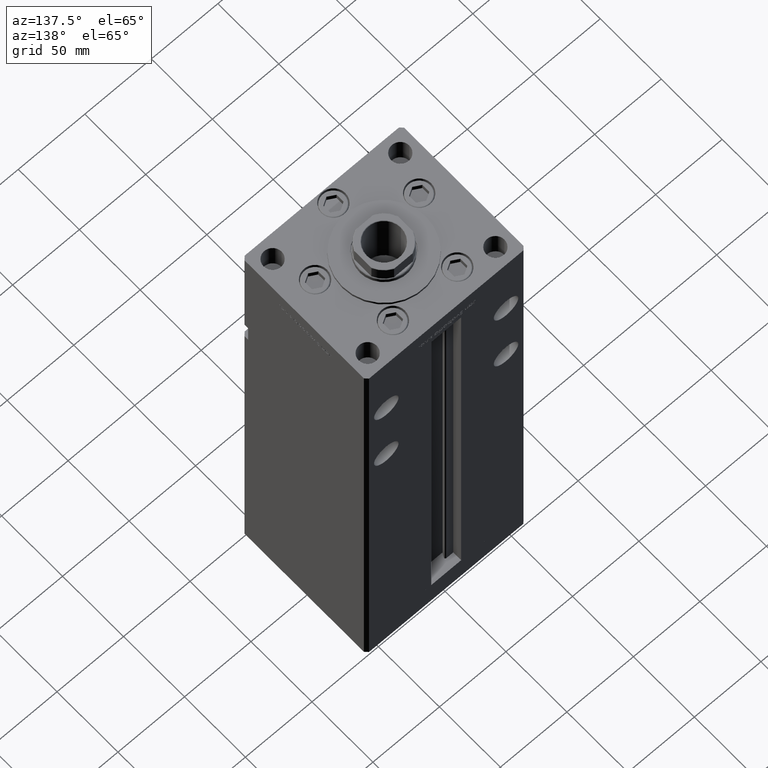
[diagram: clean part render]
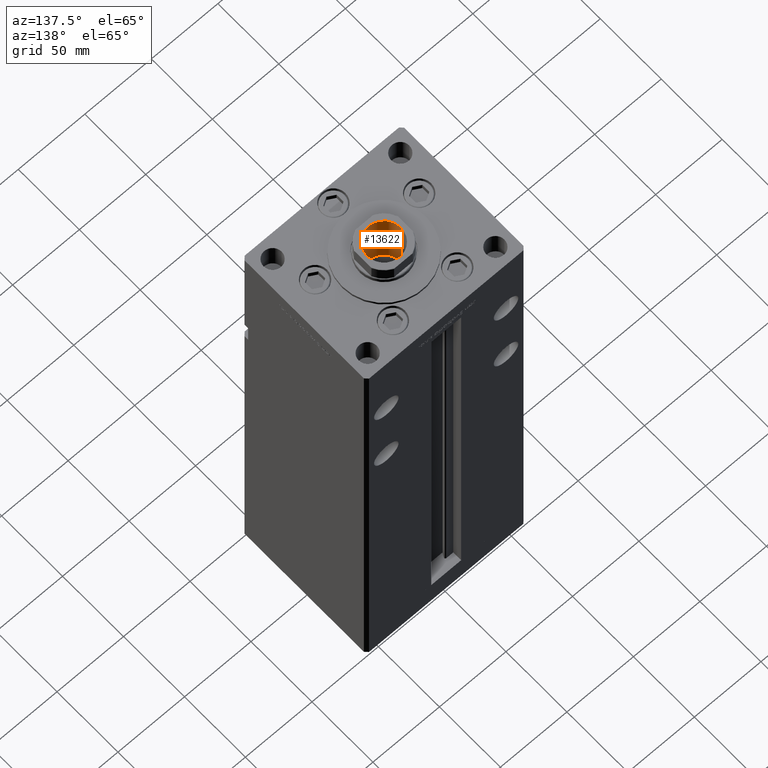
[diagram: same view with one face highlighted and labeled with its STEP entity id]
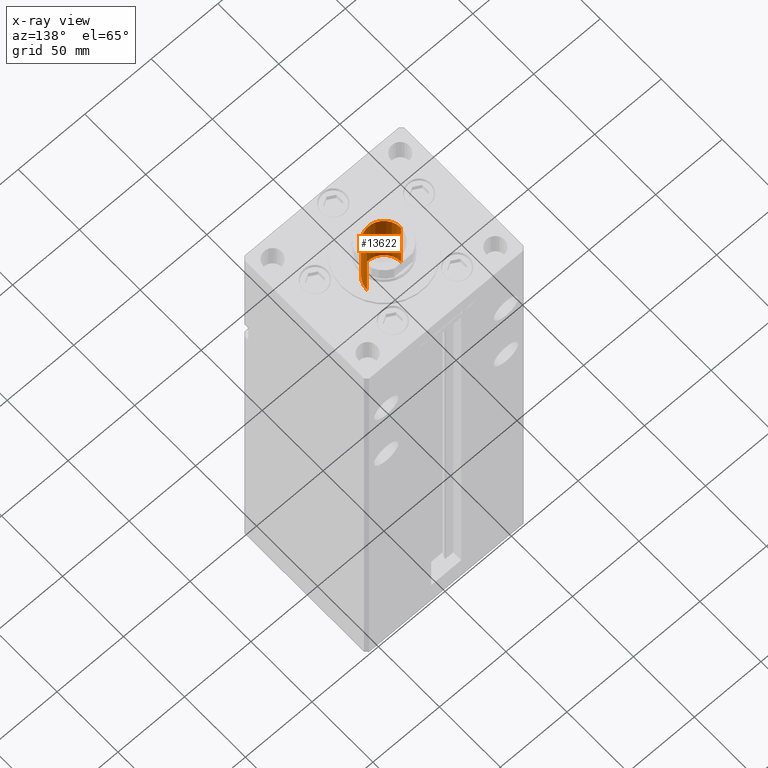
[diagram: x-ray of the same camera — body ghosted, the highlighted face saturated]
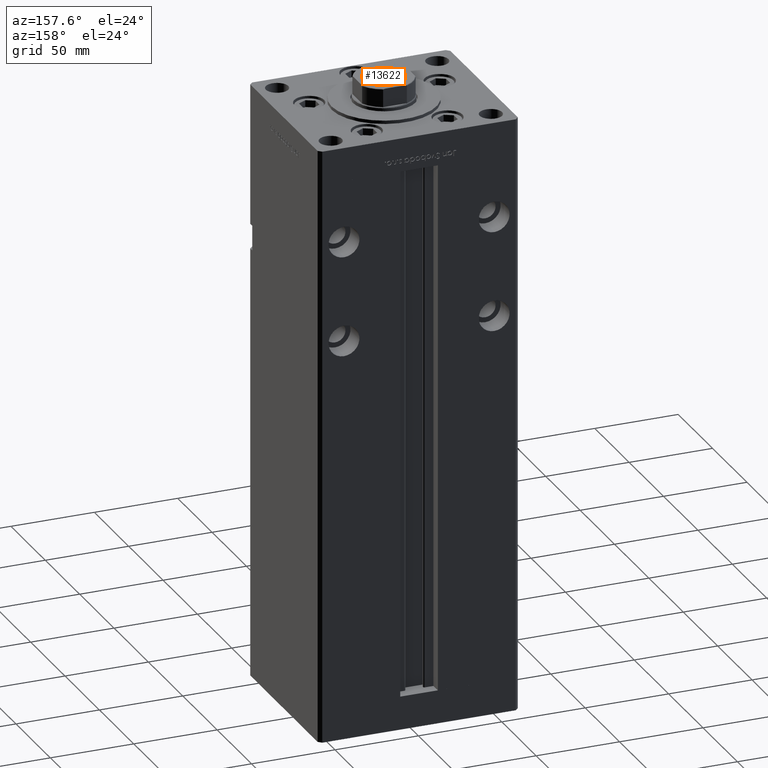
[diagram: same view with one face highlighted and labeled with its STEP entity id]
A machine part, auxiliary view. The second image highlights one B-rep face of the part: STEP entity #13622.
The next image is the same camera in x-ray: the body ghosted, the highlighted face saturated — about 0% of this face is hidden behind the body in this view.
A second angle (auxiliary view) of the same face is appended — the face is thin or edge-on in the first view.
In plain terms, the highlighted cylindrical surface (edge-blend (fillet) strip) has radius 12.75 mm, axis along (0, 0, 1).
Its self-contained STEP definition (entity closure, byte-faithful):
#700 = CIRCLE ( 'NONE', #50388, 12.74999999999999467 ) ;
#2956 = LINE ( 'NONE', #35675, #5875 ) ;
#3241 = AXIS2_PLACEMENT_3D ( 'NONE', #38018, #28184, #44555 ) ;
#4755 = FACE_OUTER_BOUND ( 'NONE', #11587, .T. ) ;
#5363 = DIRECTION ( 'NONE',  ( 1.000000000000000000, 0.000000000000000000, 0.000000000000000000 ) ) ;
#5875 = VECTOR ( 'NONE', #47251, 1000.000000000000000 ) ;
#7059 = ORIENTED_EDGE ( 'NONE', *, *, #13846, .T. ) ;
#9439 = DIRECTION ( 'NONE',  ( 0.000000000000000000, 0.000000000000000000, 1.000000000000000000 ) ) ;
#9472 = VERTEX_POINT ( 'NONE', #50186 ) ;
#11587 = EDGE_LOOP ( 'NONE', ( #24802, #7059, #20310, #22964 ) ) ;
#11625 = EDGE_CURVE ( 'NONE', #12713, #26290, #2956, .T. ) ;
#12713 = VERTEX_POINT ( 'NONE', #15523 ) ;
#13622 = ADVANCED_FACE ( 'NONE', ( #4755 ), #25158, .F. ) ;
#13846 = EDGE_CURVE ( 'NONE', #36192, #9472, #27539, .T. ) ;
#14399 = EDGE_CURVE ( 'NONE', #9472, #26290, #700, .T. ) ;
#14737 = EDGE_CURVE ( 'NONE', #36192, #12713, #29795, .T. ) ;
#15008 = CARTESIAN_POINT ( 'NONE',  ( -12.74999999999999112, 1.561424668912874125E-15, 294.2500000000000000 ) ) ;
#15523 = CARTESIAN_POINT ( 'NONE',  ( 12.74999999999999112, 0.000000000000000000, 294.2500000000000000 ) ) ;
#17821 = AXIS2_PLACEMENT_3D ( 'NONE', #34579, #26553, #5363 ) ;
#20310 = ORIENTED_EDGE ( 'NONE', *, *, #14399, .T. ) ;
#22964 = ORIENTED_EDGE ( 'NONE', *, *, #11625, .F. ) ;
#24634 = CARTESIAN_POINT ( 'NONE',  ( 12.74999999999999467, 0.000000000000000000, 338.9500000000000455 ) ) ;
#24802 = ORIENTED_EDGE ( 'NONE', *, *, #14737, .F. ) ;
#25158 = CYLINDRICAL_SURFACE ( 'NONE', #3241, 12.74999999999999467 ) ;
#26290 = VERTEX_POINT ( 'NONE', #24634 ) ;
#26553 = DIRECTION ( 'NONE',  ( -0.000000000000000000, -0.000000000000000000, 1.000000000000000000 ) ) ;
#27539 = LINE ( 'NONE', #31285, #33209 ) ;
#28184 = DIRECTION ( 'NONE',  ( -0.000000000000000000, -0.000000000000000000, 1.000000000000000000 ) ) ;
#29795 = CIRCLE ( 'NONE', #17821, 12.74999999999999112 ) ;
#30096 = CARTESIAN_POINT ( 'NONE',  ( 0.000000000000000000, 0.000000000000000000, 338.9500000000000455 ) ) ;
#31285 = CARTESIAN_POINT ( 'NONE',  ( -12.74999999999999467, 1.561424668912874519E-15, 339.2500000000000000 ) ) ;
#33209 = VECTOR ( 'NONE', #44691, 1000.000000000000000 ) ;
#34579 = CARTESIAN_POINT ( 'NONE',  ( 0.000000000000000000, 0.000000000000000000, 294.2500000000000000 ) ) ;
#34641 = DIRECTION ( 'NONE',  ( 1.000000000000000000, 0.000000000000000000, 0.000000000000000000 ) ) ;
#35675 = CARTESIAN_POINT ( 'NONE',  ( 12.74999999999999467, 0.000000000000000000, 339.2500000000000000 ) ) ;
#36192 = VERTEX_POINT ( 'NONE', #15008 ) ;
#38018 = CARTESIAN_POINT ( 'NONE',  ( 0.000000000000000000, 0.000000000000000000, 339.2500000000000000 ) ) ;
#44555 = DIRECTION ( 'NONE',  ( 1.000000000000000000, 0.000000000000000000, 0.000000000000000000 ) ) ;
#44691 = DIRECTION ( 'NONE',  ( -0.000000000000000000, -0.000000000000000000, 1.000000000000000000 ) ) ;
#47251 = DIRECTION ( 'NONE',  ( -0.000000000000000000, -0.000000000000000000, 1.000000000000000000 ) ) ;
#50186 = CARTESIAN_POINT ( 'NONE',  ( -12.74999999999999467, 1.561424668912874519E-15, 338.9500000000000455 ) ) ;
#50388 = AXIS2_PLACEMENT_3D ( 'NONE', #30096, #9439, #34641 ) ;